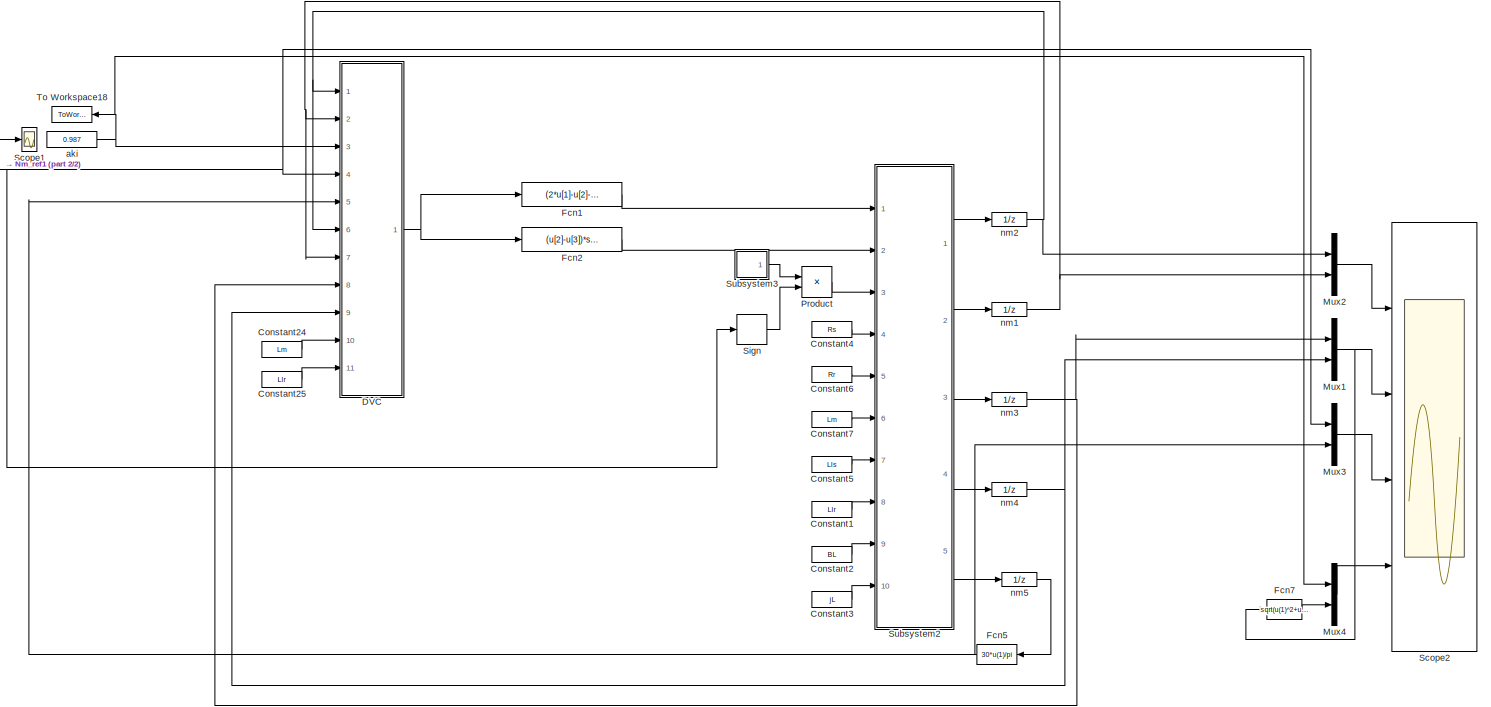
[diagram: root canvas - part 1/2, most of the canvas]
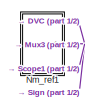
[diagram: root canvas - part 2/2, top left region]
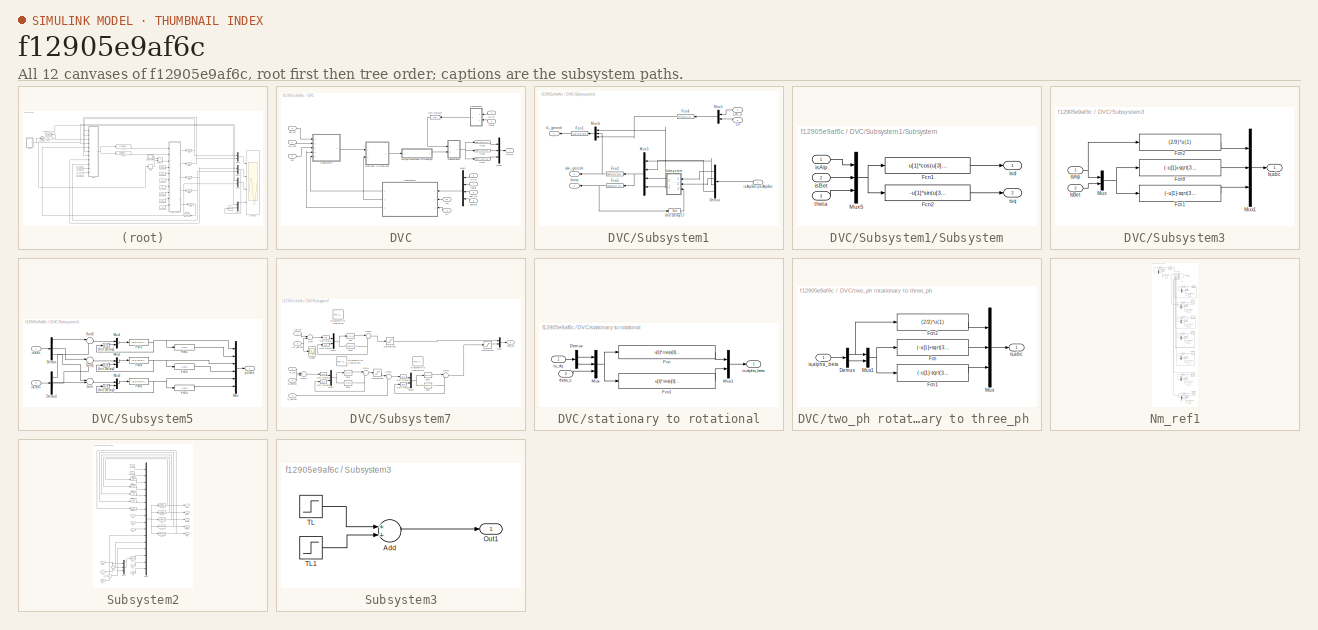
[diagram: thumbnail index - all 12 canvases of the model, root first then tree order]
MODEL slx_f12905e9af6c
KIND model
CONFIG AbsTol = auto
CONFIG EnableMultiTasking = on
CONFIG FixedStep = T
CONFIG MaxStep = auto
CONFIG MinStep = auto
CONFIG RelTol = 1e-3
CONFIG SampleTimeConstraint = Unconstrained
CONFIG Solver = ode1
CONFIG SolverName = ode1
CONFIG StartTime = 0.0
CONFIG StopTime = 60
BLOCK [Constant] Constant1
  SampleTime = T
  Value = Llr
BLOCK [Constant] Constant2
  SampleTime = T
  Value = BL
BLOCK [Constant] Constant24
  SampleTime = T
  Value = Lm
BLOCK [Constant] Constant25
  SampleTime = T
  Value = Llr
BLOCK [Constant] Constant3
  SampleTime = T
  Value = jL
BLOCK [Constant] Constant4
  SampleTime = T
  Value = Rs
BLOCK [Constant] Constant5
  SampleTime = T
  Value = Lls
BLOCK [Constant] Constant6
  SampleTime = T
  Value = Rr
BLOCK [Constant] Constant7
  SampleTime = T
  Value = Lm
BLOCK [SubSystem] DVC
  Ports = [11, 1]
  RequestExecContextInheritance = off
BLOCK [Fcn] DVC/Fcn5
  Expr = 220*(2*u(1)-u(3)-u(5))
  SampleTime = T
BLOCK [Fcn] DVC/Fcn6
  Expr = 220*(-u(1)+2*u(3)-u(5))
  SampleTime = T
BLOCK [Fcn] DVC/Fcn7
  Expr = 220*(-u(1)-u(3)+2*u(5))
  SampleTime = T
BLOCK [Inport] DVC/IsAlp
  IconDisplay = Port number
BLOCK [Inport] DVC/IsBet
  IconDisplay = Port number
  Port = 2
BLOCK [Inport] DVC/Llr
  IconDisplay = Port number
  Port = 11
BLOCK [Inport] DVC/Lm
  IconDisplay = Port number
  Port = 10
BLOCK [Mux] DVC/Mux4
  DisplayOption = bar
  Ports = [4, 1]
BLOCK [Mux] DVC/Mux5
  DisplayOption = bar
  Inputs = 3
  Ports = [3, 1]
BLOCK [Inport] DVC/Nm_ref
  IconDisplay = Port number
  Port = 4
BLOCK [SubSystem] DVC/Subsystem1
  Ports = [3, 3]
  RequestExecContextInheritance = off
BLOCK [Demux] DVC/Subsystem1/Demux
  DisplayOption = bar
  Ports = [1, 4]
BLOCK [Fcn] DVC/Subsystem1/Fcn2
  Expr = sqrt(u(1)^2+u(2)^2)
  SampleTime = T
BLOCK [Fcn] DVC/Subsystem1/Fcn3
  Expr = u(3)*u(1)*u(2)
  SampleTime = T
BLOCK [Fcn] DVC/Subsystem1/Fcn4
  Expr = 3*Pp*u(1)/(2*(u(1)+u(2)))
  SampleTime = T
BLOCK [Fcn] DVC/Subsystem1/Fcn5
  Expr = atan2(u(2),(eps+u(1)))
  SampleTime = T
BLOCK [Inport] DVC/Subsystem1/Llr
  IconDisplay = Port number
  Port = 3
BLOCK [Inport] DVC/Subsystem1/Lm_o 
  IconDisplay = Port number
  Port = 2
BLOCK [Mux] DVC/Subsystem1/Mux1
  DisplayOption = bar
  Inputs = 2
  Ports = [2, 1]
BLOCK [Mux] DVC/Subsystem1/Mux5
  DisplayOption = bar
  Ports = [4, 1]
BLOCK [Mux] DVC/Subsystem1/Mux6
  DisplayOption = bar
  Inputs = 3
  Ports = [3, 1]
BLOCK [SubSystem] DVC/Subsystem1/Subsystem
  Ports = [3, 2]
  RequestExecContextInheritance = off
BLOCK [Fcn] DVC/Subsystem1/Subsystem/Fcn1
  Expr = u[1]*cos(u[3])+u[2]*sin(u[3])
BLOCK [Fcn] DVC/Subsystem1/Subsystem/Fcn2
  Expr = -u[1]*sin(u[3])+u[2]*cos(u[3])
BLOCK [Mux] DVC/Subsystem1/Subsystem/Mux5
  DisplayOption = bar
  Inputs = 3
  Ports = [3, 1]
BLOCK [Inport] DVC/Subsystem1/Subsystem/isAlp
  IconDisplay = Port number
BLOCK [Inport] DVC/Subsystem1/Subsystem/isBet
  IconDisplay = Port number
  Port = 2
BLOCK [Outport] DVC/Subsystem1/Subsystem/isd
  IconDisplay = Port number
BLOCK [Outport] DVC/Subsystem1/Subsystem/isq
  IconDisplay = Port number
  Port = 2
BLOCK [Inport] DVC/Subsystem1/Subsystem/theta
  IconDisplay = Port number
  Port = 3
BLOCK [UnitDelay] DVC/Subsystem1/Unit Delay17
  InputProcessing = Elements as channels (sample based)
  SampleTime = T
BLOCK [Outport] DVC/Subsystem1/aki_gercek
  IconDisplay = Port number
BLOCK [Inport] DVC/Subsystem1/isAlpBet psiAlpBet
  IconDisplay = Port number
BLOCK [Outport] DVC/Subsystem1/tL_gercek
  IconDisplay = Port number
  Port = 3
BLOCK [Outport] DVC/Subsystem1/theta
  IconDisplay = Port number
  Port = 2
BLOCK [SubSystem] DVC/Subsystem3
  Ports = [2, 1]
  RequestExecContextInheritance = off
BLOCK [Fcn] DVC/Subsystem3/Fcn1
  Expr = (-u[1]-sqrt(3)*u[2])/3
  SampleTime = T
BLOCK [Fcn] DVC/Subsystem3/Fcn2
  Expr = (2/3)*u(1)
  SampleTime = T
BLOCK [Fcn] DVC/Subsystem3/Fcn8
  Expr = (-u[1]+sqrt(3)*u[2])/3
  SampleTime = T
BLOCK [Outport] DVC/Subsystem3/Is,abc
  IconDisplay = Port number
BLOCK [Inport] DVC/Subsystem3/IsAlp
  IconDisplay = Port number
BLOCK [Inport] DVC/Subsystem3/IsBet
  IconDisplay = Port number
  Port = 2
BLOCK [Mux] DVC/Subsystem3/Mux
  DisplayOption = bar
  Inputs = 2
  Ports = [2, 1]
BLOCK [Mux] DVC/Subsystem3/Mux1
  DisplayOption = bar
  Inputs = 3
  Ports = [3, 1]
BLOCK [SubSystem] DVC/Subsystem5
  Ports = [2, 1]
  RequestExecContextInheritance = off
BLOCK [Demux] DVC/Subsystem5/Demux
  DisplayOption = bar
  Outputs = 3
  Ports = [1, 3]
BLOCK [Demux] DVC/Subsystem5/Demux1
  DisplayOption = bar
  Outputs = 3
  Ports = [1, 3]
BLOCK [Fcn] DVC/Subsystem5/Fcn1
  Expr = 1-u(1)
  SampleTime = T
BLOCK [Fcn] DVC/Subsystem5/Fcn2
  Expr = 1-u(1)
  SampleTime = T
BLOCK [Fcn] DVC/Subsystem5/Fcn3
  Expr = (u(1)>=0.5)*(1)+(u(1)<=-0.5)*(0)+(-0.5<u(1) && u(1)<0.5)*(u(2))
  SampleTime = T
BLOCK [Fcn] DVC/Subsystem5/Fcn4
  Expr = (u(1)>=0.5)*(1)+(u(1)<=-0.5)*(0)+(-0.5<u(1) && u(1)<0.5)*(u(2))
  SampleTime = T
BLOCK [Fcn] DVC/Subsystem5/Fcn5
  Expr = 1-u(1)
  SampleTime = T
BLOCK [Fcn] DVC/Subsystem5/Fcn6
  Expr = (u(1)>=0.5)*(1)+(u(1)<=-0.5)*(0)+(-0.5<u(1) && u(1)<0.5)*(u(2))
  SampleTime = T
BLOCK [Mux] DVC/Subsystem5/Mux
  DisplayOption = bar
  Inputs = 6
  Ports = [6, 1]
BLOCK [Mux] DVC/Subsystem5/Mux1
  DisplayOption = bar
  Inputs = 2
  Ports = [2, 1]
BLOCK [Mux] DVC/Subsystem5/Mux2
  DisplayOption = bar
  Inputs = 2
  Ports = [2, 1]
BLOCK [Mux] DVC/Subsystem5/Mux3
  DisplayOption = bar
  Inputs = 2
  Ports = [2, 1]
BLOCK [Sum] DVC/Subsystem5/Sum
  IconShape = round
  InputSameDT = off
  Inputs = |-+
  OutDataTypeStr = Inherit: Inherit via internal rule
  Ports = [2, 1]
  SampleTime = T
  SaturateOnIntegerOverflow = off
BLOCK [Sum] DVC/Subsystem5/Sum1
  IconShape = round
  InputSameDT = off
  Inputs = |-+
  OutDataTypeStr = Inherit: Inherit via internal rule
  Ports = [2, 1]
  SampleTime = T
  SaturateOnIntegerOverflow = off
BLOCK [Sum] DVC/Subsystem5/Sum2
  IconShape = round
  InputSameDT = off
  Inputs = |-+
  OutDataTypeStr = Inherit: Inherit via internal rule
  Ports = [2, 1]
  SampleTime = T
  SaturateOnIntegerOverflow = off
BLOCK [UnitDelay] DVC/Subsystem5/Unit Delay1
  SampleTime = T
BLOCK [UnitDelay] DVC/Subsystem5/Unit Delay2
  SampleTime = T
BLOCK [UnitDelay] DVC/Subsystem5/Unit Delay3
  SampleTime = T
BLOCK [Inport] DVC/Subsystem5/is,abc
  IconDisplay = Port number
BLOCK [Inport] DVC/Subsystem5/isr,abc
  IconDisplay = Port number
  Port = 2
BLOCK [Outport] DVC/Subsystem5/pulses
  IconDisplay = Port number
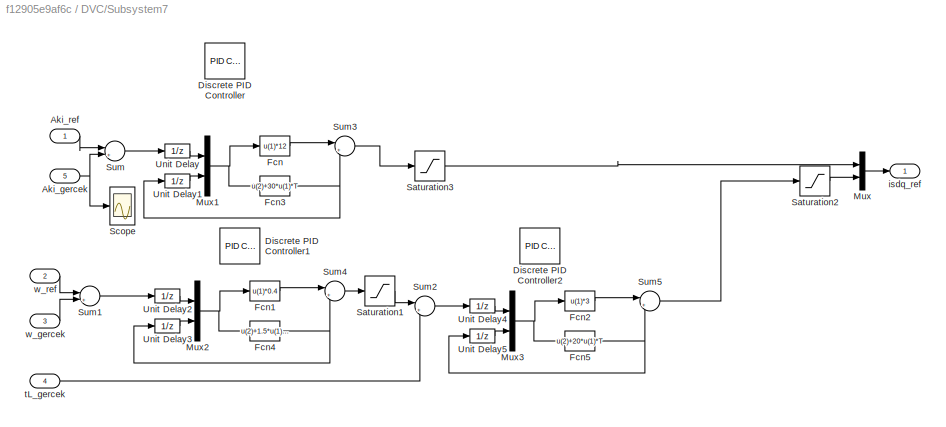
BLOCK [SubSystem] DVC/Subsystem7
  Ports = [5, 1]
  RequestExecContextInheritance = off
BLOCK [Inport] DVC/Subsystem7/Aki_gercek
  IconDisplay = Port number
  Port = 5
BLOCK [Inport] DVC/Subsystem7/Aki_ref
  IconDisplay = Port number
BLOCK [Reference] DVC/Subsystem7/Discrete PID Controller  REF=simulink/Continuous/PID Controller
  Ports = [1, 1]
  SourceBlock = simulink/Continuous/PID Controller
  SourceProductBaseCode = SL
  SourceProductName = Simulink
  SourceType = PID 1dof
BLOCK [Reference] DVC/Subsystem7/Discrete PID Controller1  REF=simulink/Continuous/PID Controller
  Ports = [1, 1]
  SourceBlock = simulink/Continuous/PID Controller
  SourceProductBaseCode = SL
  SourceProductName = Simulink
  SourceType = PID 1dof
BLOCK [Reference] DVC/Subsystem7/Discrete PID Controller2  REF=simulink/Continuous/PID Controller
  Ports = [1, 1]
  SourceBlock = simulink/Continuous/PID Controller
  SourceProductBaseCode = SL
  SourceProductName = Simulink
  SourceType = PID 1dof
BLOCK [Fcn] DVC/Subsystem7/Fcn
  Expr = u(1)*12
  SampleTime = T
BLOCK [Fcn] DVC/Subsystem7/Fcn1
  Expr = u(1)*0.4
  SampleTime = T
BLOCK [Fcn] DVC/Subsystem7/Fcn2
  Expr = u(1)*3
  SampleTime = T
BLOCK [Fcn] DVC/Subsystem7/Fcn3
  Expr = u(2)+30*u(1)*T
  SampleTime = T
BLOCK [Fcn] DVC/Subsystem7/Fcn4
  Expr = u(2)+1.5*u(1)*T
  SampleTime = T
BLOCK [Fcn] DVC/Subsystem7/Fcn5
  Expr = u(2)+20*u(1)*T
  SampleTime = T
BLOCK [Mux] DVC/Subsystem7/Mux
  DisplayOption = bar
  Inputs = 2
  Ports = [2, 1]
BLOCK [Mux] DVC/Subsystem7/Mux1
  DisplayOption = bar
  Inputs = 2
  Ports = [2, 1]
BLOCK [Mux] DVC/Subsystem7/Mux2
  DisplayOption = bar
  Inputs = 2
  Ports = [2, 1]
BLOCK [Mux] DVC/Subsystem7/Mux3
  DisplayOption = bar
  Inputs = 2
  Ports = [2, 1]
BLOCK [Saturate] DVC/Subsystem7/Saturation1
  InputPortMap = u0
  LowerLimit = -60
  Ports = [1, 1]
  SampleTime = T
  UpperLimit = 60
BLOCK [Saturate] DVC/Subsystem7/Saturation2
  InputPortMap = u0
  LowerLimit = -30
  Ports = [1, 1]
  SampleTime = T
  UpperLimit = 30
BLOCK [Saturate] DVC/Subsystem7/Saturation3
  InputPortMap = u0
  LowerLimit = -30
  Ports = [1, 1]
  SampleTime = T
  UpperLimit = 30
BLOCK [Scope] DVC/Subsystem7/Scope
  Floating = off
  NumInputPorts = 1
  Ports = [1]
  ScopeSpecificationString = C++SS(StrPVP('Location','[188, 390, 512, 629]'),StrPVP('Open','off'),MxPVP('AxesTitles',53,'struct(''axes1'',''%<SignalLabel>'')'),MxPVP('ScopeGraphics',56,'struct(''FigureColor'',''[0.5 0.5 0.5]'',''AxesColor'',''[0 0 0]'',''AxesTickColor'',''[1 1 1]'',''LineColors'',''[1 1 0;1 0 1;0 1 1;1 0 0;0 1 0;0 0 1]'',''LineStyles'',''-|-|-|-|-|-'',''LineWidths'',''[0.5 0.5 0.5 0.5 0.5 0.5]'',''MarkerStyle...<+239ch>
BLOCK [Sum] DVC/Subsystem7/Sum
  IconShape = round
  InputSameDT = off
  Inputs = |+-
  OutDataTypeStr = Inherit: Inherit via internal rule
  Ports = [2, 1]
  SampleTime = T
  SaturateOnIntegerOverflow = off
BLOCK [Sum] DVC/Subsystem7/Sum1
  IconShape = round
  InputSameDT = off
  Inputs = |+-
  OutDataTypeStr = Inherit: Inherit via internal rule
  Ports = [2, 1]
  SampleTime = T
  SaturateOnIntegerOverflow = off
BLOCK [Sum] DVC/Subsystem7/Sum2
  IconShape = round
  InputSameDT = off
  Inputs = |+-
  OutDataTypeStr = Inherit: Inherit via internal rule
  Ports = [2, 1]
  SampleTime = T
  SaturateOnIntegerOverflow = off
BLOCK [Sum] DVC/Subsystem7/Sum3
  IconShape = round
  InputSameDT = off
  Inputs = |++
  OutDataTypeStr = Inherit: Inherit via internal rule
  Ports = [2, 1]
  SampleTime = T
  SaturateOnIntegerOverflow = off
BLOCK [Sum] DVC/Subsystem7/Sum4
  IconShape = round
  InputSameDT = off
  Inputs = |++
  OutDataTypeStr = Inherit: Inherit via internal rule
  Ports = [2, 1]
  SampleTime = T
  SaturateOnIntegerOverflow = off
BLOCK [Sum] DVC/Subsystem7/Sum5
  IconShape = round
  InputSameDT = off
  Inputs = |++
  OutDataTypeStr = Inherit: Inherit via internal rule
  Ports = [2, 1]
  SampleTime = T
  SaturateOnIntegerOverflow = off
BLOCK [UnitDelay] DVC/Subsystem7/Unit Delay
  SampleTime = T
BLOCK [UnitDelay] DVC/Subsystem7/Unit Delay1
  SampleTime = T
BLOCK [UnitDelay] DVC/Subsystem7/Unit Delay2
  SampleTime = T
BLOCK [UnitDelay] DVC/Subsystem7/Unit Delay3
  SampleTime = T
BLOCK [UnitDelay] DVC/Subsystem7/Unit Delay4
  SampleTime = T
BLOCK [UnitDelay] DVC/Subsystem7/Unit Delay5
  SampleTime = T
BLOCK [Outport] DVC/Subsystem7/isdq_ref
  IconDisplay = Port number
BLOCK [Inport] DVC/Subsystem7/tL_gercek
  IconDisplay = Port number
  Port = 4
BLOCK [Inport] DVC/Subsystem7/w_gercek
  IconDisplay = Port number
  Port = 3
BLOCK [Inport] DVC/Subsystem7/w_ref
  IconDisplay = Port number
  Port = 2
BLOCK [UnitDelay] DVC/Unit Delay17
  InputProcessing = Elements as channels (sample based)
  SampleTime = T
BLOCK [Outport] DVC/Va,b,c
  IconDisplay = Port number
BLOCK [Inport] DVC/aki_ref
  IconDisplay = Port number
  Port = 3
BLOCK [Inport] DVC/isAlp
  IconDisplay = Port number
  Port = 6
BLOCK [Inport] DVC/isBet
  IconDisplay = Port number
  Port = 7
BLOCK [Inport] DVC/nm
  IconDisplay = Port number
  Port = 5
BLOCK [Inport] DVC/psiAlp
  IconDisplay = Port number
  Port = 8
BLOCK [Inport] DVC/psiBet
  IconDisplay = Port number
  Port = 9
BLOCK [SubSystem] DVC/stationary to rotational
  Ports = [2, 1]
  RequestExecContextInheritance = off
BLOCK [Demux] DVC/stationary to rotational/Demux
  DisplayOption = bar
  Outputs = 2
  Ports = [1, 2]
BLOCK [Fcn] DVC/stationary to rotational/Fcn
  Expr = u[1]*cos(u[3])-u[2]*sin(u[3])
  SampleTime = T
BLOCK [Fcn] DVC/stationary to rotational/Fcn1
  Expr = u[1]*sin(u[3])+u[2]*cos(u[3])
  SampleTime = T
BLOCK [Mux] DVC/stationary to rotational/Mux
  DisplayOption = bar
  Inputs = 3
  Ports = [3, 1]
BLOCK [Mux] DVC/stationary to rotational/Mux1
  DisplayOption = bar
  Inputs = 2
  Ports = [2, 1]
BLOCK [Outport] DVC/stationary to rotational/is,alpha_beta
  IconDisplay = Port number
BLOCK [Inport] DVC/stationary to rotational/is_dq
  IconDisplay = Port number
BLOCK [Inport] DVC/stationary to rotational/theta_s
  IconDisplay = Port number
  Port = 2
BLOCK [SubSystem] DVC/two_ph rotationary to three_ph 
  Ports = [1, 1]
  RequestExecContextInheritance = off
BLOCK [Demux] DVC/two_ph rotationary to three_ph /Demux
  DisplayOption = bar
  Outputs = 2
  Ports = [1, 2]
BLOCK [Fcn] DVC/two_ph rotationary to three_ph /Fcn
  Expr = (-u[1]+sqrt(3)*u[2])/3
  SampleTime = T
BLOCK [Fcn] DVC/two_ph rotationary to three_ph /Fcn1
  Expr = (-u[1]-sqrt(3)*u[2])/3
  SampleTime = T
BLOCK [Fcn] DVC/two_ph rotationary to three_ph /Fcn2
  Expr = (2/3)*u(1)
  SampleTime = T
BLOCK [Mux] DVC/two_ph rotationary to three_ph /Mux
  DisplayOption = bar
  Inputs = 3
  Ports = [3, 1]
BLOCK [Mux] DVC/two_ph rotationary to three_ph /Mux1
  DisplayOption = bar
  Inputs = 2
  Ports = [2, 1]
BLOCK [Outport] DVC/two_ph rotationary to three_ph /is,abc
  IconDisplay = Port number
BLOCK [Inport] DVC/two_ph rotationary to three_ph /is,alpha_beta
  IconDisplay = Port number
BLOCK [Fcn] Fcn1
  Expr = (2*u[1]-u[2]-u[3])/3
  SampleTime = T
BLOCK [Fcn] Fcn2
  Expr = (u[2]-u[3])*sqrt(3)/3
  SampleTime = T
BLOCK [Fcn] Fcn5
  Expr = 30*u(1)/pi
  SampleTime = T
BLOCK [Fcn] Fcn7
  Expr = sqrt(u(1)^2+u(2)^2)
  SampleTime = T
BLOCK [Mux] Mux1
  DisplayOption = bar
  Inputs = 2
  Ports = [2, 1]
BLOCK [Mux] Mux2
  DisplayOption = bar
  Inputs = 2
  Ports = [2, 1]
BLOCK [Mux] Mux3
  DisplayOption = bar
  Inputs = 2
  Ports = [2, 1]
BLOCK [Mux] Mux4
  DisplayOption = bar
  Inputs = 2
  Ports = [2, 1]
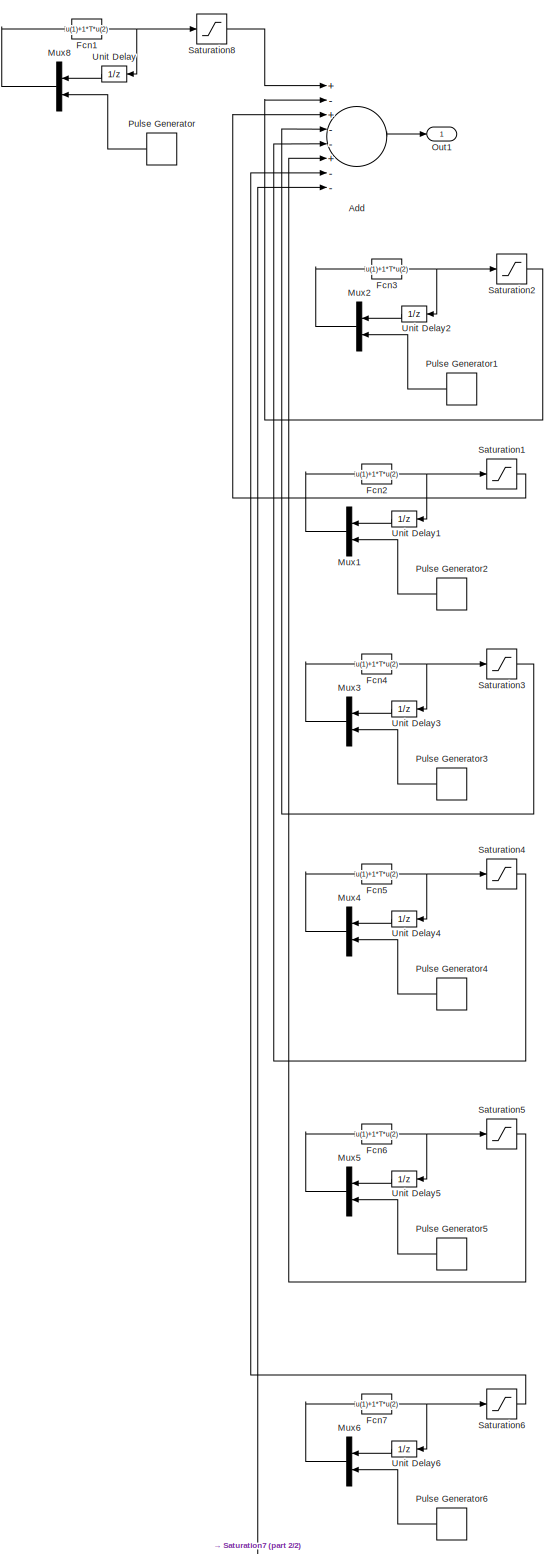
[diagram: Nm_ref1 - part 1/2, most of the canvas]
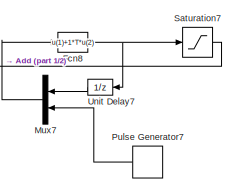
[diagram: Nm_ref1 - part 2/2, bottom right region]
BLOCK [SubSystem] Nm_ref1
  Ports = [0, 1]
  RequestExecContextInheritance = off
BLOCK [Sum] Nm_ref1/Add
  InputSameDT = off
  Inputs = +-+--+--
  OutDataTypeStr = Inherit: Inherit via internal rule
  Ports = [8, 1]
  SampleTime = T
  SaturateOnIntegerOverflow = off
BLOCK [Fcn] Nm_ref1/Fcn1
  Expr = u(1)+1*T*u(2)
  SampleTime = T
BLOCK [Fcn] Nm_ref1/Fcn2
  Expr = u(1)+1*T*u(2)
  SampleTime = T
BLOCK [Fcn] Nm_ref1/Fcn3
  Expr = u(1)+1*T*u(2)
  SampleTime = T
BLOCK [Fcn] Nm_ref1/Fcn4
  Expr = u(1)+1*T*u(2)
  SampleTime = T
BLOCK [Fcn] Nm_ref1/Fcn5
  Expr = u(1)+1*T*u(2)
  SampleTime = T
BLOCK [Fcn] Nm_ref1/Fcn6
  Expr = u(1)+1*T*u(2)
  SampleTime = T
BLOCK [Fcn] Nm_ref1/Fcn7
  Expr = u(1)+1*T*u(2)
  SampleTime = T
BLOCK [Fcn] Nm_ref1/Fcn8
  Expr = u(1)+1*T*u(2)
  SampleTime = T
BLOCK [Mux] Nm_ref1/Mux1
  DisplayOption = bar
  Inputs = 2
  Ports = [2, 1]
BLOCK [Mux] Nm_ref1/Mux2
  DisplayOption = bar
  Inputs = 2
  Ports = [2, 1]
BLOCK [Mux] Nm_ref1/Mux3
  DisplayOption = bar
  Inputs = 2
  Ports = [2, 1]
BLOCK [Mux] Nm_ref1/Mux4
  DisplayOption = bar
  Inputs = 2
  Ports = [2, 1]
BLOCK [Mux] Nm_ref1/Mux5
  DisplayOption = bar
  Inputs = 2
  Ports = [2, 1]
BLOCK [Mux] Nm_ref1/Mux6
  DisplayOption = bar
  Inputs = 2
  Ports = [2, 1]
BLOCK [Mux] Nm_ref1/Mux7
  DisplayOption = bar
  Inputs = 2
  Ports = [2, 1]
BLOCK [Mux] Nm_ref1/Mux8
  DisplayOption = bar
  Inputs = 2
  Ports = [2, 1]
BLOCK [Outport] Nm_ref1/Out1
  IconDisplay = Port number
BLOCK [DiscretePulseGenerator] Nm_ref1/Pulse Generator
  Amplitude = nb
  Period = 10000000
  Ports = [0, 1]
  PulseType = Time based
  PulseWidth = 50
  SampleTime = T
BLOCK [DiscretePulseGenerator] Nm_ref1/Pulse Generator1
  Amplitude = nb
  Period = 100000000
  PhaseDelay = 7
  Ports = [0, 1]
  PulseType = Time based
  PulseWidth = 50
  SampleTime = T
BLOCK [DiscretePulseGenerator] Nm_ref1/Pulse Generator2
  Amplitude = nb
  Period = 100000000
  PhaseDelay = 14
  Ports = [0, 1]
  PulseType = Time based
  PulseWidth = 50
  SampleTime = T
BLOCK [DiscretePulseGenerator] Nm_ref1/Pulse Generator3
  Amplitude = nb-20
  Period = 100000000
  PhaseDelay = 21
  Ports = [0, 1]
  PulseType = Time based
  PulseWidth = 50
  SampleTime = T
BLOCK [DiscretePulseGenerator] Nm_ref1/Pulse Generator4
  Amplitude = 40
  Period = 100000000
  PhaseDelay = 28
  Ports = [0, 1]
  PulseType = Time based
  PulseWidth = 50
  SampleTime = T
BLOCK [DiscretePulseGenerator] Nm_ref1/Pulse Generator5
  Amplitude = 120
  Period = 100000000
  PhaseDelay = 35
  Ports = [0, 1]
  PulseType = Time based
  PulseWidth = 50
  SampleTime = T
BLOCK [DiscretePulseGenerator] Nm_ref1/Pulse Generator6
  Amplitude = 200
  Period = 100000000
  PhaseDelay = 42
  Ports = [0, 1]
  PulseType = Time based
  PulseWidth = 50
  SampleTime = T
BLOCK [DiscretePulseGenerator] Nm_ref1/Pulse Generator7
  Amplitude = 900
  Period = 100000000
  PhaseDelay = 49
  Ports = [0, 1]
  PulseType = Time based
  PulseWidth = 50
  SampleTime = T
BLOCK [Saturate] Nm_ref1/Saturation1
  InputPortMap = u0
  LowerLimit = -nb
  Ports = [1, 1]
  SampleTime = T
  UpperLimit = nb
BLOCK [Saturate] Nm_ref1/Saturation2
  InputPortMap = u0
  LowerLimit = -nb
  Ports = [1, 1]
  SampleTime = T
  UpperLimit = nb
BLOCK [Saturate] Nm_ref1/Saturation3
  InputPortMap = u0
  LowerLimit = -nb+20
  Ports = [1, 1]
  SampleTime = T
  UpperLimit = nb-20
BLOCK [Saturate] Nm_ref1/Saturation4
  InputPortMap = u0
  LowerLimit = -40
  Ports = [1, 1]
  SampleTime = T
  UpperLimit = 40
BLOCK [Saturate] Nm_ref1/Saturation5
  InputPortMap = u0
  LowerLimit = -120
  Ports = [1, 1]
  SampleTime = T
  UpperLimit = 120
BLOCK [Saturate] Nm_ref1/Saturation6
  InputPortMap = u0
  LowerLimit = -200
  Ports = [1, 1]
  SampleTime = T
  UpperLimit = 200
BLOCK [Saturate] Nm_ref1/Saturation7
  InputPortMap = u0
  LowerLimit = -900
  Ports = [1, 1]
  SampleTime = T
  UpperLimit = 900
BLOCK [Saturate] Nm_ref1/Saturation8
  InputPortMap = u0
  LowerLimit = -nb
  Ports = [1, 1]
  SampleTime = T
  UpperLimit = nb
BLOCK [UnitDelay] Nm_ref1/Unit Delay
  SampleTime = T
BLOCK [UnitDelay] Nm_ref1/Unit Delay1
  SampleTime = T
BLOCK [UnitDelay] Nm_ref1/Unit Delay2
  SampleTime = T
BLOCK [UnitDelay] Nm_ref1/Unit Delay3
  SampleTime = T
BLOCK [UnitDelay] Nm_ref1/Unit Delay4
  SampleTime = T
BLOCK [UnitDelay] Nm_ref1/Unit Delay5
  SampleTime = T
BLOCK [UnitDelay] Nm_ref1/Unit Delay6
  SampleTime = T
BLOCK [UnitDelay] Nm_ref1/Unit Delay7
  SampleTime = T
BLOCK [Product] Product
  InputSameDT = off
  OutDataTypeStr = Inherit: Inherit via internal rule
  Ports = [2, 1]
  RndMeth = Floor
  SaturateOnIntegerOverflow = off
BLOCK [Scope] Scope1
  Floating = off
  NumInputPorts = 1
  Ports = [1]
  ScopeSpecificationString = Simulink.scopes.TimeScopeBlockCfg('CurrentConfiguration', extmgr.ConfigurationSet(extmgr.Configuration('Core','General UI',true,'DisplayFullSourceName',true),extmgr.Configuration('Core','Source UI',true),extmgr.Configuration('Sources','WiredSimulink',true,'DataLoggingVariableName','ScopeData2','DataLoggingSaveFormat','StructureWithTime','DataLoggingLimitDataPoints',true,'DataLoggingDecimation','1'...<+1665ch>
BLOCK [Scope] Scope2
  Floating = off
  NumInputPorts = 4
  Ports = [4]
  ScopeSpecificationString = Simulink.scopes.TimeScopeBlockCfg('CurrentConfiguration', extmgr.ConfigurationSet(extmgr.Configuration('Core','General UI',true,'DisplayFullSourceName',true),extmgr.Configuration('Core','Source UI',true),extmgr.Configuration('Sources','WiredSimulink',true,'DataLoggingVariableName','ScopeData1','DataLoggingSaveFormat','StructureWithTime','DataLoggingDecimation','1','DataLoggingDecimateData',true),e...<+3799ch>
BLOCK [Signum] Sign
BLOCK [SubSystem] Subsystem2
  Ports = [10, 5]
  RequestExecContextInheritance = off
BLOCK [Sum] Subsystem2/Add
  IconShape = round
  InputSameDT = off
  OutDataTypeStr = Inherit: Inherit via internal rule
  Ports = [2, 1]
  SaturateOnIntegerOverflow = off
BLOCK [Sum] Subsystem2/Add1
  IconShape = round
  InputSameDT = off
  OutDataTypeStr = Inherit: Inherit via internal rule
  Ports = [2, 1]
  SaturateOnIntegerOverflow = off
BLOCK [Inport] Subsystem2/BL
  IconDisplay = Port number
  Port = 9
BLOCK [Fcn] Subsystem2/Fcn1
  Expr = u(2)-u(1)^2/u(3)
  SampleTime = T
BLOCK [Fcn] Subsystem2/Fcn3
  Expr = (1-(u(9)/(u(14))+u(11)^2*u(10)/(u(14)*u(13)^2))*T)*u(3)+u(11)*u(10)*T*u(5)/(u(14)*u(13)^2)+u(11)*Pp*u(7)*T*u(6)/(u(14)*u(13))+T*u(1)/(u(14))
BLOCK [Fcn] Subsystem2/Fcn4
  Expr = (1-(u(9) /(u(14))+u(11)^2*u(10)/(u(14)*u(13)^2))*T)*u(4)+u(11)*u(10)*T*u(6)/(u(14)*u(13)^2)-u(11)*Pp*u(7)*T*u(5)/(u(14)*u(13))+T*u(2)/(u(14))
BLOCK [Fcn] Subsystem2/Fcn5
  Expr = u(10)*u(11)*T*u(3)/u(13)+(1-u(10)*T/u(13))*u(5)-Pp*u(7)*T*u(6)
BLOCK [Fcn] Subsystem2/Fcn6
  Expr = u(10)*u(11)*T*u(4)/u(13)+(1-u(10)*T/u(13))*u(6)+Pp*u(7)*T*u(5)
BLOCK [Fcn] Subsystem2/Fcn7
  Expr = (3*Pp*u(11)/(2*u(16)*u(13)))*(u(5)*u(4)-u(6)*u(3))*T+(1-u(15)*T/u(16))*u(7)-u(8)*T/u(16)
BLOCK [Outport] Subsystem2/IsAlp
  IconDisplay = Port number
BLOCK [Outport] Subsystem2/IsBet
  IconDisplay = Port number
  Port = 2
BLOCK [Inport] Subsystem2/JL
  IconDisplay = Port number
  Port = 10
BLOCK [Inport] Subsystem2/Llr
  IconDisplay = Port number
  Port = 8
BLOCK [Inport] Subsystem2/Lls
  IconDisplay = Port number
  Port = 7
BLOCK [Inport] Subsystem2/Lm
  IconDisplay = Port number
  Port = 6
BLOCK [Mux] Subsystem2/Mux1
  DisplayOption = bar
  Inputs = 16
  Ports = [16, 1]
BLOCK [Mux] Subsystem2/Mux2
  DisplayOption = bar
  Inputs = 3
  Ports = [3, 1]
BLOCK [Outport] Subsystem2/PsiAlp
  IconDisplay = Port number
  Port = 3
BLOCK [Outport] Subsystem2/PsiBet
  IconDisplay = Port number
  Port = 4
BLOCK [Inport] Subsystem2/Rr
  IconDisplay = Port number
  Port = 5
BLOCK [Inport] Subsystem2/Rs
  IconDisplay = Port number
  Port = 4
BLOCK [Inport] Subsystem2/TL
  IconDisplay = Port number
  Port = 3
BLOCK [UnitDelay] Subsystem2/Unit Delay
  InputProcessing = Elements as channels (sample based)
  SampleTime = -1
BLOCK [UnitDelay] Subsystem2/Unit Delay1
  InputProcessing = Elements as channels (sample based)
  SampleTime = -1
BLOCK [UnitDelay] Subsystem2/Unit Delay2
  InputProcessing = Elements as channels (sample based)
  SampleTime = -1
BLOCK [UnitDelay] Subsystem2/Unit Delay3
  InputProcessing = Elements as channels (sample based)
  SampleTime = -1
BLOCK [UnitDelay] Subsystem2/Unit Delay4
  InputProcessing = Elements as channels (sample based)
  SampleTime = -1
BLOCK [Outport] Subsystem2/Wm
  IconDisplay = Port number
  Port = 5
BLOCK [Inport] Subsystem2/vs_alp
  IconDisplay = Port number
BLOCK [Inport] Subsystem2/vs_bet
  IconDisplay = Port number
  Port = 2
BLOCK [SubSystem] Subsystem3
  Ports = [0, 1]
  RequestExecContextInheritance = off
BLOCK [Sum] Subsystem3/Add
  InputSameDT = off
  OutDataTypeStr = Inherit: Inherit via internal rule
  Ports = [2, 1]
  SaturateOnIntegerOverflow = off
BLOCK [Outport] Subsystem3/Out1
  IconDisplay = Port number
BLOCK [Step] Subsystem3/TL
  After = 10
  Before = 20
  SampleTime = T
  Time = 3
BLOCK [Step] Subsystem3/TL1
  After = 10
  SampleTime = T
  Time = 16
BLOCK [ToWorkspace] To Workspace18
  MaxDataPoints = inf
  Ports = [1]
  SampleTime = T
  SaveFormat = Timeseries
  VariableName = aki_ref
BLOCK [Constant] aki
  SampleTime = T
  Value = 0.987
BLOCK [UnitDelay] nm1
  InputProcessing = Elements as channels (sample based)
  SampleTime = T
BLOCK [UnitDelay] nm2
  InputProcessing = Elements as channels (sample based)
  SampleTime = T
BLOCK [UnitDelay] nm3
  InputProcessing = Elements as channels (sample based)
  SampleTime = T
BLOCK [UnitDelay] nm4
  InputProcessing = Elements as channels (sample based)
  SampleTime = T
BLOCK [UnitDelay] nm5
  InputProcessing = Elements as channels (sample based)
  SampleTime = T
LINE Constant1:1 -> Subsystem2:8
LINE Constant24:1 -> DVC:10
LINE Constant25:1 -> DVC:11
LINE Constant2:1 -> Subsystem2:9
LINE Constant3:1 -> Subsystem2:10
LINE Constant4:1 -> Subsystem2:4
LINE Constant5:1 -> Subsystem2:7
LINE Constant6:1 -> Subsystem2:5
LINE Constant7:1 -> Subsystem2:6
LINE DVC/Fcn5:1 -> DVC/Mux5:1
LINE DVC/Fcn6:1 -> DVC/Mux5:2
LINE DVC/Fcn7:1 -> DVC/Mux5:3
LINE DVC/IsAlp:1 -> DVC/Subsystem3:1
LINE DVC/IsBet:1 -> DVC/Subsystem3:2
LINE DVC/Llr:1 -> DVC/Subsystem1:3
LINE DVC/Lm:1 -> DVC/Subsystem1:2
LINE DVC/Mux4:1 -> DVC/Subsystem1:1
LINE DVC/Mux5:1 -> DVC/Va,b,c:1
LINE DVC/Nm_ref:1 -> DVC/Subsystem7:2
LINE DVC/Subsystem1/Demux:1 -> DVC/Subsystem1/Subsystem:1
LINE DVC/Subsystem1/Demux:2 -> DVC/Subsystem1/Subsystem:2
LINE DVC/Subsystem1/Demux:3 -> DVC/Subsystem1/Mux5:1
LINE DVC/Subsystem1/Demux:4 -> DVC/Subsystem1/Mux5:2
NET DVC/Subsystem1/Fcn2:1 -> DVC/Subsystem1/Mux6:2, DVC/Subsystem1/aki_gercek:1
LINE DVC/Subsystem1/Fcn3:1 -> DVC/Subsystem1/tL_gercek:1
LINE DVC/Subsystem1/Fcn4:1 -> DVC/Subsystem1/Mux6:3
NET DVC/Subsystem1/Fcn5:1 -> DVC/Subsystem1/Unit Delay17:1, DVC/Subsystem1/theta:1
LINE DVC/Subsystem1/Llr:1 -> DVC/Subsystem1/Mux1:2
LINE DVC/Subsystem1/Lm_o :1 -> DVC/Subsystem1/Mux1:1
LINE DVC/Subsystem1/Mux1:1 -> DVC/Subsystem1/Fcn4:1
NET DVC/Subsystem1/Mux5:1 -> DVC/Subsystem1/Fcn2:1, DVC/Subsystem1/Fcn5:1
LINE DVC/Subsystem1/Mux6:1 -> DVC/Subsystem1/Fcn3:1
LINE DVC/Subsystem1/Subsystem/Fcn1:1 -> DVC/Subsystem1/Subsystem/isd:1
LINE DVC/Subsystem1/Subsystem/Fcn2:1 -> DVC/Subsystem1/Subsystem/isq:1
NET DVC/Subsystem1/Subsystem/Mux5:1 -> DVC/Subsystem1/Subsystem/Fcn1:1, DVC/Subsystem1/Subsystem/Fcn2:1
LINE DVC/Subsystem1/Subsystem/isAlp:1 -> DVC/Subsystem1/Subsystem/Mux5:1
LINE DVC/Subsystem1/Subsystem/isBet:1 -> DVC/Subsystem1/Subsystem/Mux5:2
LINE DVC/Subsystem1/Subsystem/theta:1 -> DVC/Subsystem1/Subsystem/Mux5:3
LINE DVC/Subsystem1/Subsystem:1 -> DVC/Subsystem1/Mux5:3
NET DVC/Subsystem1/Subsystem:2 -> DVC/Subsystem1/Mux5:4, DVC/Subsystem1/Mux6:1
LINE DVC/Subsystem1/Unit Delay17:1 -> DVC/Subsystem1/Subsystem:3
LINE DVC/Subsystem1/isAlpBet psiAlpBet:1 -> DVC/Subsystem1/Demux:1
LINE DVC/Subsystem1:1 -> DVC/Subsystem7:5
LINE DVC/Subsystem1:2 -> DVC/stationary to rotational:2
LINE DVC/Subsystem1:3 -> DVC/Subsystem7:4
LINE DVC/Subsystem3/Fcn1:1 -> DVC/Subsystem3/Mux1:3
LINE DVC/Subsystem3/Fcn2:1 -> DVC/Subsystem3/Mux1:1
LINE DVC/Subsystem3/Fcn8:1 -> DVC/Subsystem3/Mux1:2
NET DVC/Subsystem3/IsAlp:1 -> DVC/Subsystem3/Fcn2:1, DVC/Subsystem3/Mux:1
LINE DVC/Subsystem3/IsBet:1 -> DVC/Subsystem3/Mux:2
LINE DVC/Subsystem3/Mux1:1 -> DVC/Subsystem3/Is,abc:1
NET DVC/Subsystem3/Mux:1 -> DVC/Subsystem3/Fcn1:1, DVC/Subsystem3/Fcn8:1
LINE DVC/Subsystem3:1 -> DVC/Unit Delay17:1
LINE DVC/Subsystem5/Demux1:1 -> DVC/Subsystem5/Sum2:2
LINE DVC/Subsystem5/Demux1:2 -> DVC/Subsystem5/Sum1:2
LINE DVC/Subsystem5/Demux1:3 -> DVC/Subsystem5/Sum:2
LINE DVC/Subsystem5/Demux:1 -> DVC/Subsystem5/Sum2:1
LINE DVC/Subsystem5/Demux:2 -> DVC/Subsystem5/Sum1:1
LINE DVC/Subsystem5/Demux:3 -> DVC/Subsystem5/Sum:1
LINE DVC/Subsystem5/Fcn1:1 -> DVC/Subsystem5/Mux:2
LINE DVC/Subsystem5/Fcn2:1 -> DVC/Subsystem5/Mux:4
NET DVC/Subsystem5/Fcn3:1 -> DVC/Subsystem5/Fcn1:1, DVC/Subsystem5/Mux:1, DVC/Subsystem5/Unit Delay1:1
NET DVC/Subsystem5/Fcn4:1 -> DVC/Subsystem5/Fcn2:1, DVC/Subsystem5/Mux:3, DVC/Subsystem5/Unit Delay2:1
LINE DVC/Subsystem5/Fcn5:1 -> DVC/Subsystem5/Mux:6
NET DVC/Subsystem5/Fcn6:1 -> DVC/Subsystem5/Fcn5:1, DVC/Subsystem5/Mux:5, DVC/Subsystem5/Unit Delay3:1
LINE DVC/Subsystem5/Mux1:1 -> DVC/Subsystem5/Fcn3:1
LINE DVC/Subsystem5/Mux2:1 -> DVC/Subsystem5/Fcn4:1
LINE DVC/Subsystem5/Mux3:1 -> DVC/Subsystem5/Fcn6:1
LINE DVC/Subsystem5/Mux:1 -> DVC/Subsystem5/pulses:1
LINE DVC/Subsystem5/Sum1:1 -> DVC/Subsystem5/Mux2:1
LINE DVC/Subsystem5/Sum2:1 -> DVC/Subsystem5/Mux1:1
LINE DVC/Subsystem5/Sum:1 -> DVC/Subsystem5/Mux3:1
LINE DVC/Subsystem5/Unit Delay1:1 -> DVC/Subsystem5/Mux1:2
LINE DVC/Subsystem5/Unit Delay2:1 -> DVC/Subsystem5/Mux2:2
LINE DVC/Subsystem5/Unit Delay3:1 -> DVC/Subsystem5/Mux3:2
LINE DVC/Subsystem5/is,abc:1 -> DVC/Subsystem5/Demux:1
LINE DVC/Subsystem5/isr,abc:1 -> DVC/Subsystem5/Demux1:1
NET DVC/Subsystem5:1 -> DVC/Fcn5:1, DVC/Fcn6:1, DVC/Fcn7:1
NET DVC/Subsystem7/Aki_gercek:1 -> DVC/Subsystem7/Scope:1, DVC/Subsystem7/Sum:2
LINE DVC/Subsystem7/Aki_ref:1 -> DVC/Subsystem7/Sum:1
LINE DVC/Subsystem7/Fcn1:1 -> DVC/Subsystem7/Sum4:1
LINE DVC/Subsystem7/Fcn2:1 -> DVC/Subsystem7/Sum5:1
NET DVC/Subsystem7/Fcn3:1 -> DVC/Subsystem7/Sum3:2, DVC/Subsystem7/Unit Delay1:1
NET DVC/Subsystem7/Fcn4:1 -> DVC/Subsystem7/Sum4:2, DVC/Subsystem7/Unit Delay3:1
NET DVC/Subsystem7/Fcn5:1 -> DVC/Subsystem7/Sum5:2, DVC/Subsystem7/Unit Delay5:1
LINE DVC/Subsystem7/Fcn:1 -> DVC/Subsystem7/Sum3:1
NET DVC/Subsystem7/Mux1:1 -> DVC/Subsystem7/Fcn3:1, DVC/Subsystem7/Fcn:1
NET DVC/Subsystem7/Mux2:1 -> DVC/Subsystem7/Fcn1:1, DVC/Subsystem7/Fcn4:1
NET DVC/Subsystem7/Mux3:1 -> DVC/Subsystem7/Fcn2:1, DVC/Subsystem7/Fcn5:1
LINE DVC/Subsystem7/Mux:1 -> DVC/Subsystem7/isdq_ref:1
LINE DVC/Subsystem7/Saturation1:1 -> DVC/Subsystem7/Sum2:1
LINE DVC/Subsystem7/Saturation2:1 -> DVC/Subsystem7/Mux:2
LINE DVC/Subsystem7/Saturation3:1 -> DVC/Subsystem7/Mux:1
LINE DVC/Subsystem7/Sum1:1 -> DVC/Subsystem7/Unit Delay2:1
LINE DVC/Subsystem7/Sum2:1 -> DVC/Subsystem7/Unit Delay4:1
LINE DVC/Subsystem7/Sum3:1 -> DVC/Subsystem7/Saturation3:1
LINE DVC/Subsystem7/Sum4:1 -> DVC/Subsystem7/Saturation1:1
LINE DVC/Subsystem7/Sum5:1 -> DVC/Subsystem7/Saturation2:1
LINE DVC/Subsystem7/Sum:1 -> DVC/Subsystem7/Unit Delay:1
LINE DVC/Subsystem7/Unit Delay1:1 -> DVC/Subsystem7/Mux1:2
LINE DVC/Subsystem7/Unit Delay2:1 -> DVC/Subsystem7/Mux2:1
LINE DVC/Subsystem7/Unit Delay3:1 -> DVC/Subsystem7/Mux2:2
LINE DVC/Subsystem7/Unit Delay4:1 -> DVC/Subsystem7/Mux3:1
LINE DVC/Subsystem7/Unit Delay5:1 -> DVC/Subsystem7/Mux3:2
LINE DVC/Subsystem7/Unit Delay:1 -> DVC/Subsystem7/Mux1:1
LINE DVC/Subsystem7/tL_gercek:1 -> DVC/Subsystem7/Sum2:2
LINE DVC/Subsystem7/w_gercek:1 -> DVC/Subsystem7/Sum1:2
LINE DVC/Subsystem7/w_ref:1 -> DVC/Subsystem7/Sum1:1
LINE DVC/Subsystem7:1 -> DVC/stationary to rotational:1
LINE DVC/Unit Delay17:1 -> DVC/Subsystem5:1
LINE DVC/aki_ref:1 -> DVC/Subsystem7:1
LINE DVC/isAlp:1 -> DVC/Mux4:1
LINE DVC/isBet:1 -> DVC/Mux4:2
LINE DVC/nm:1 -> DVC/Subsystem7:3
LINE DVC/psiAlp:1 -> DVC/Mux4:3
LINE DVC/psiBet:1 -> DVC/Mux4:4
LINE DVC/stationary to rotational/Demux:1 -> DVC/stationary to rotational/Mux:1
LINE DVC/stationary to rotational/Demux:2 -> DVC/stationary to rotational/Mux:2
LINE DVC/stationary to rotational/Fcn1:1 -> DVC/stationary to rotational/Mux1:2
LINE DVC/stationary to rotational/Fcn:1 -> DVC/stationary to rotational/Mux1:1
LINE DVC/stationary to rotational/Mux1:1 -> DVC/stationary to rotational/is,alpha_beta:1
NET DVC/stationary to rotational/Mux:1 -> DVC/stationary to rotational/Fcn1:1, DVC/stationary to rotational/Fcn:1
LINE DVC/stationary to rotational/is_dq:1 -> DVC/stationary to rotational/Demux:1
LINE DVC/stationary to rotational/theta_s:1 -> DVC/stationary to rotational/Mux:3
LINE DVC/stationary to rotational:1 -> DVC/two_ph rotationary to three_ph :1
NET DVC/two_ph rotationary to three_ph /Demux:1 -> DVC/two_ph rotationary to three_ph /Fcn2:1, DVC/two_ph rotationary to three_ph /Mux1:1
LINE DVC/two_ph rotationary to three_ph /Demux:2 -> DVC/two_ph rotationary to three_ph /Mux1:2
LINE DVC/two_ph rotationary to three_ph /Fcn1:1 -> DVC/two_ph rotationary to three_ph /Mux:3
LINE DVC/two_ph rotationary to three_ph /Fcn2:1 -> DVC/two_ph rotationary to three_ph /Mux:1
LINE DVC/two_ph rotationary to three_ph /Fcn:1 -> DVC/two_ph rotationary to three_ph /Mux:2
NET DVC/two_ph rotationary to three_ph /Mux1:1 -> DVC/two_ph rotationary to three_ph /Fcn1:1, DVC/two_ph rotationary to three_ph /Fcn:1
LINE DVC/two_ph rotationary to three_ph /Mux:1 -> DVC/two_ph rotationary to three_ph /is,abc:1
LINE DVC/two_ph rotationary to three_ph /is,alpha_beta:1 -> DVC/two_ph rotationary to three_ph /Demux:1
LINE DVC/two_ph rotationary to three_ph :1 -> DVC/Subsystem5:2
NET DVC:1 -> Fcn1:1, Fcn2:1
LINE Fcn1:1 -> Subsystem2:1
LINE Fcn2:1 -> Subsystem2:2
NET Fcn5:1 -> DVC:5, Mux3:2
LINE Fcn7:1 -> Mux4:2
NET Mux1:1 -> Fcn7:1, Scope2:2
LINE Mux2:1 -> Scope2:1
LINE Mux3:1 -> Scope2:3
LINE Mux4:1 -> Scope2:4
LINE Nm_ref1/Add:1 -> Nm_ref1/Out1:1
NET Nm_ref1/Fcn1:1 -> Nm_ref1/Saturation8:1, Nm_ref1/Unit Delay:1
NET Nm_ref1/Fcn2:1 -> Nm_ref1/Saturation1:1, Nm_ref1/Unit Delay1:1
NET Nm_ref1/Fcn3:1 -> Nm_ref1/Saturation2:1, Nm_ref1/Unit Delay2:1
NET Nm_ref1/Fcn4:1 -> Nm_ref1/Saturation3:1, Nm_ref1/Unit Delay3:1
NET Nm_ref1/Fcn5:1 -> Nm_ref1/Saturation4:1, Nm_ref1/Unit Delay4:1
NET Nm_ref1/Fcn6:1 -> Nm_ref1/Saturation5:1, Nm_ref1/Unit Delay5:1
NET Nm_ref1/Fcn7:1 -> Nm_ref1/Saturation6:1, Nm_ref1/Unit Delay6:1
NET Nm_ref1/Fcn8:1 -> Nm_ref1/Saturation7:1, Nm_ref1/Unit Delay7:1
LINE Nm_ref1/Mux1:1 -> Nm_ref1/Fcn2:1
LINE Nm_ref1/Mux2:1 -> Nm_ref1/Fcn3:1
LINE Nm_ref1/Mux3:1 -> Nm_ref1/Fcn4:1
LINE Nm_ref1/Mux4:1 -> Nm_ref1/Fcn5:1
LINE Nm_ref1/Mux5:1 -> Nm_ref1/Fcn6:1
LINE Nm_ref1/Mux6:1 -> Nm_ref1/Fcn7:1
LINE Nm_ref1/Mux7:1 -> Nm_ref1/Fcn8:1
LINE Nm_ref1/Mux8:1 -> Nm_ref1/Fcn1:1
LINE Nm_ref1/Pulse Generator1:1 -> Nm_ref1/Mux2:2
LINE Nm_ref1/Pulse Generator2:1 -> Nm_ref1/Mux1:2
LINE Nm_ref1/Pulse Generator3:1 -> Nm_ref1/Mux3:2
LINE Nm_ref1/Pulse Generator4:1 -> Nm_ref1/Mux4:2
LINE Nm_ref1/Pulse Generator5:1 -> Nm_ref1/Mux5:2
LINE Nm_ref1/Pulse Generator6:1 -> Nm_ref1/Mux6:2
LINE Nm_ref1/Pulse Generator7:1 -> Nm_ref1/Mux7:2
LINE Nm_ref1/Pulse Generator:1 -> Nm_ref1/Mux8:2
LINE Nm_ref1/Saturation1:1 -> Nm_ref1/Add:3
LINE Nm_ref1/Saturation2:1 -> Nm_ref1/Add:2
LINE Nm_ref1/Saturation3:1 -> Nm_ref1/Add:4
LINE Nm_ref1/Saturation4:1 -> Nm_ref1/Add:5
LINE Nm_ref1/Saturation5:1 -> Nm_ref1/Add:6
LINE Nm_ref1/Saturation6:1 -> Nm_ref1/Add:7
LINE Nm_ref1/Saturation7:1 -> Nm_ref1/Add:8
LINE Nm_ref1/Saturation8:1 -> Nm_ref1/Add:1
LINE Nm_ref1/Unit Delay1:1 -> Nm_ref1/Mux1:1
LINE Nm_ref1/Unit Delay2:1 -> Nm_ref1/Mux2:1
LINE Nm_ref1/Unit Delay3:1 -> Nm_ref1/Mux3:1
LINE Nm_ref1/Unit Delay4:1 -> Nm_ref1/Mux4:1
LINE Nm_ref1/Unit Delay5:1 -> Nm_ref1/Mux5:1
LINE Nm_ref1/Unit Delay6:1 -> Nm_ref1/Mux6:1
LINE Nm_ref1/Unit Delay7:1 -> Nm_ref1/Mux7:1
LINE Nm_ref1/Unit Delay:1 -> Nm_ref1/Mux8:1
NET Nm_ref1:1 -> DVC:4, Mux3:1, Scope1:1, Sign:1
LINE Product:1 -> Subsystem2:3
LINE Sign:1 -> Product:2
NET Subsystem2/Add1:1 -> Subsystem2/Mux1:13, Subsystem2/Mux2:3
NET Subsystem2/Add:1 -> Subsystem2/Mux1:12, Subsystem2/Mux2:2
LINE Subsystem2/BL:1 -> Subsystem2/Mux1:15
LINE Subsystem2/Fcn1:1 -> Subsystem2/Mux1:14
NET Subsystem2/Fcn3:1 -> Subsystem2/IsAlp:1, Subsystem2/Unit Delay:1
NET Subsystem2/Fcn4:1 -> Subsystem2/IsBet:1, Subsystem2/Unit Delay1:1
NET Subsystem2/Fcn5:1 -> Subsystem2/PsiAlp:1, Subsystem2/Unit Delay2:1
NET Subsystem2/Fcn6:1 -> Subsystem2/PsiBet:1, Subsystem2/Unit Delay3:1
NET Subsystem2/Fcn7:1 -> Subsystem2/Unit Delay4:1, Subsystem2/Wm:1
LINE Subsystem2/JL:1 -> Subsystem2/Mux1:16
LINE Subsystem2/Llr:1 -> Subsystem2/Add1:2
LINE Subsystem2/Lls:1 -> Subsystem2/Add:2
NET Subsystem2/Lm:1 -> Subsystem2/Add1:1, Subsystem2/Add:1, Subsystem2/Mux1:11, Subsystem2/Mux2:1
NET Subsystem2/Mux1:1 -> Subsystem2/Fcn3:1, Subsystem2/Fcn4:1, Subsystem2/Fcn5:1, Subsystem2/Fcn6:1, Subsystem2/Fcn7:1
LINE Subsystem2/Mux2:1 -> Subsystem2/Fcn1:1
LINE Subsystem2/Rr:1 -> Subsystem2/Mux1:10
LINE Subsystem2/Rs:1 -> Subsystem2/Mux1:9
LINE Subsystem2/TL:1 -> Subsystem2/Mux1:8
LINE Subsystem2/Unit Delay1:1 -> Subsystem2/Mux1:4
LINE Subsystem2/Unit Delay2:1 -> Subsystem2/Mux1:5
LINE Subsystem2/Unit Delay3:1 -> Subsystem2/Mux1:6
LINE Subsystem2/Unit Delay4:1 -> Subsystem2/Mux1:7
LINE Subsystem2/Unit Delay:1 -> Subsystem2/Mux1:3
LINE Subsystem2/vs_alp:1 -> Subsystem2/Mux1:1
LINE Subsystem2/vs_bet:1 -> Subsystem2/Mux1:2
LINE Subsystem2:1 -> nm2:1
LINE Subsystem2:2 -> nm1:1
LINE Subsystem2:3 -> nm3:1
LINE Subsystem2:4 -> nm4:1
LINE Subsystem2:5 -> nm5:1
LINE Subsystem3/Add:1 -> Subsystem3/Out1:1
LINE Subsystem3/TL1:1 -> Subsystem3/Add:2
LINE Subsystem3/TL:1 -> Subsystem3/Add:1
LINE Subsystem3:1 -> Product:1
NET aki:1 -> DVC:3, Mux4:1, To Workspace18:1
NET nm1:1 -> DVC:2, DVC:7, Mux2:2
NET nm2:1 -> DVC:1, DVC:6, Mux2:1
NET nm3:1 -> DVC:8, Mux1:1
NET nm4:1 -> DVC:9, Mux1:2
LINE nm5:1 -> Fcn5:1
note: NET lines group one-source signal fan-out (src -> all destinations, sorted); 1:1 wires keep LINE
